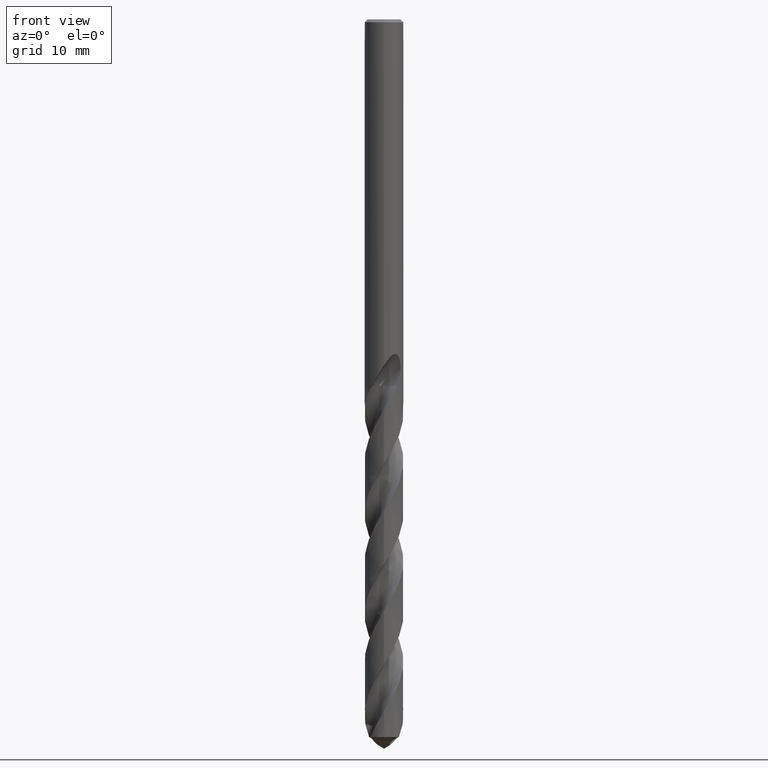
[diagram: clean part render]
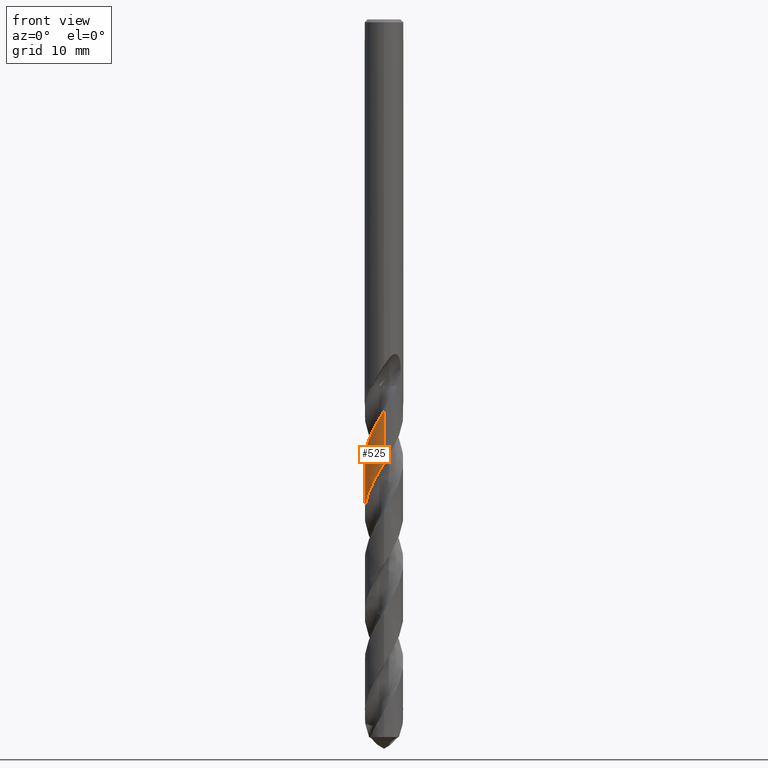
[diagram: same view with one face highlighted and labeled with its STEP entity id]
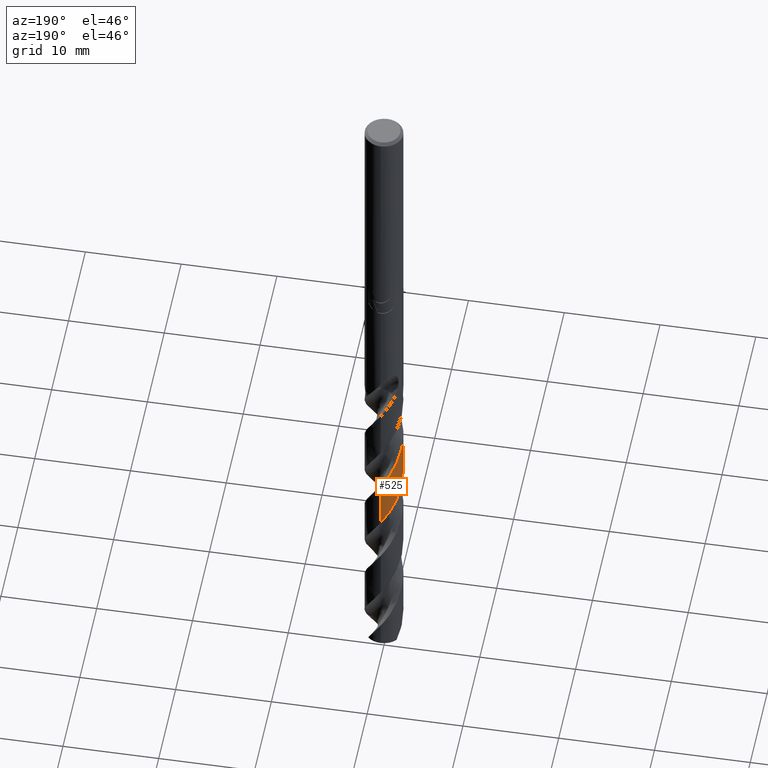
[diagram: same view with one face highlighted and labeled with its STEP entity id]
A machine part, front view. The second image highlights one B-rep face of the part: STEP entity #525.
A second angle (auxiliary view) of the same face is appended — the face is thin or edge-on in the first view.
In plain terms, the highlighted conical surface has half-angle 0 deg.
Its self-contained STEP definition (entity closure, byte-faithful):
#353=VERTEX_POINT('',#861);
#411=EDGE_CURVE('',#523,#513,#926,.T.);
#437=VERTEX_POINT('',#954);
#507=EDGE_CURVE('',#437,#523,#1030,.T.);
#513=VERTEX_POINT('',#1036);
#523=VERTEX_POINT('',#1046);
#525=ADVANCED_FACE('',(#1048),#1049,.T.);
#579=EDGE_CURVE('',#353,#437,#1111,.T.);
#645=EDGE_CURVE('',#513,#353,#1182,.T.);
#861=CARTESIAN_POINT('',(-2.19366825789092E-009,1.99993564318214,-50.5665752471484));
#926=LINE('',#3664,#3665);
#954=CARTESIAN_POINT('',(-1.89821851818501E-015,1.9999507209495,-56.0093897424403));
#1030=B_SPLINE_CURVE_WITH_KNOTS('',3,(#5679,#5680,#5681,#5682,#5683,#5684,#5685,#5686,#5687,#5688,#5689,#5690,#5691,#5692,#5693,#5694,#5695,#5696,#5697,#5698,#5699,#5700,#5701,#5702,#5703,#5704,#5705,#5706,#5707,#5708,#5709,#5710,#5711,#5712,#5713,#5714,#5715,#5716,#5717,#5718,#5719,#5720,#5721,#5722,#5723,#5724,#5725,#5726,#5727,#5728,#5729,#5730,#5731,#5732,#5733,#5734,#5735,#5736,#5737,#5738,#5739,#5740,#5741,#5742,#5743,#5744,#5745,#5746,#5747,#5748,#5749,#5750,#5751,#5752,#5753,#5754,#5755,#5756,#5757,#5758,#5759,#5760,#5761,#5762,#5763,#5764,#5765,#5766,#5767,#5768,#5769,#5770,#5771,#5772,#5773,#5774,#5775,#5776,#5777,#5778,#5779,#5780,#5781,#5782,#5783,#5784,#5785,#5786,#5787,#5788,#5789,#5790,#5791,#5792,#5793,#5794,#5795,#5796,#5797,#5798,#5799,#5800,#5801,#5802,#5803,#5804,#5805,#5806,#5807,#5808,#5809,#5810,#5811,#5812,#5813,#5814,#5815,#5816,#5817,#5818,#5819,#5820,#5821,#5822,#5823,#5824,#5825,#5826,#5827,#5828,#5829,#5830,#5831,#5832),.UNSPECIFIED.,.F.,.F.,(4,2,2,2,2,2,2,2,2,2,2,2,2,2,2,2,2,2,2,2,2,2,2,2,2,2,2,2,2,2,2,2,2,2,2,2,2,2,2,2,2,2,2,2,2,2,2,2,2,2,2,2,2,2,2,2,2,2,2,2,2,2,2,2,2,2,2,2,2,2,2,2,2,2,2,2,4),(0.0,1.24032553367658,1.48286990301691,2.52081264087684,3.03416551821197,3.70671508389971,4.37725410743775,5.04963320050356,5.72220383189465,6.4003737901738,7.10927777773157,7.8181323907391,8.52318346004922,9.23372237013536,9.86816172978323,10.5423467489422,10.8815407967902,10.9202487577009,11.6191148237687,11.9582378039923,12.5892865601359,13.2587080366521,13.5954922823803,13.6339757824647,14.3272693134265,14.6640012649049,15.2917140321308,15.956398699509,16.2907919260985,16.3741696488591,17.0057839634591,17.3403080393974,17.9800262047859,18.6405448371667,18.8057959462238,19.306067297673,19.965554956693,20.6227756760714,21.2818084755752,21.9409480895873,22.5996297300975,23.260602684544,23.8918656910809,24.5907816662158,25.2077878209879,25.9085561176649,26.6442976286168,27.3048885068284,27.9655777373696,28.6280008085611,29.2679378144779,29.9334140876591,30.514889471551,30.8504927100535,31.3663553845967,32.0286925286017,32.6890297992378,33.3509291716013,34.013185464377,34.674810658622,35.3388098755929,35.9656113593743,36.633379136894,37.7345972654092,37.7859749709192,38.4782272810486,40.0207165348157,40.6471288940166,40.9388104690562,41.1025023262755,41.195596909164,41.2333776767071,41.2695378062387,41.3189884562492,41.4343713854189,41.5982485505299,41.788288954141),.UNSPECIFIED.);
#1036=CARTESIAN_POINT('',(-3.76272970418629E-015,-1.99990702961773,-40.2375710057314));
#1046=CARTESIAN_POINT('',(2.46037451759699E-013,-1.99992210752273,-45.6804351803826));
#1048=FACE_OUTER_BOUND('',#5905,.T.);
#1049=CONICAL_SURFACE('',#5906,1.99995,2.77021518558259E-006);
#1111=LINE('',#6089,#6090);
#1182=B_SPLINE_CURVE_WITH_KNOTS('',3,(#7059,#7060,#7061,#7062,#7063,#7064,#7065,#7066,#7067,#7068,#7069,#7070,#7071,#7072,#7073,#7074,#7075,#7076,#7077,#7078,#7079,#7080,#7081,#7082,#7083,#7084,#7085,#7086,#7087,#7088,#7089,#7090,#7091,#7092,#7093,#7094,#7095,#7096,#7097,#7098,#7099,#7100,#7101,#7102,#7103,#7104,#7105,#7106,#7107,#7108,#7109,#7110,#7111,#7112,#7113,#7114,#7115,#7116,#7117,#7118,#7119,#7120,#7121,#7122,#7123,#7124,#7125,#7126,#7127,#7128,#7129,#7130,#7131,#7132,#7133,#7134,#7135,#7136,#7137,#7138,#7139,#7140,#7141,#7142,#7143,#7144,#7145,#7146,#7147,#7148,#7149,#7150,#7151,#7152,#7153,#7154,#7155,#7156,#7157,#7158,#7159,#7160,#7161,#7162,#7163,#7164,#7165,#7166,#7167,#7168,#7169,#7170,#7171,#7172,#7173,#7174,#7175,#7176,#7177,#7178,#7179,#7180,#7181,#7182,#7183,#7184,#7185,#7186,#7187,#7188,#7189,#7190,#7191,#7192,#7193,#7194,#7195,#7196,#7197,#7198,#7199,#7200,#7201,#7202,#7203,#7204,#7205,#7206,#7207,#7208,#7209,#7210,#7211,#7212,#7213,#7214,#7215,#7216,#7217,#7218,#7219,#7220,#7221,#7222,#7223,#7224,#7225,#7226,#7227,#7228,#7229,#7230,#7231,#7232,#7233,#7234,#7235,#7236,#7237,#7238,#7239,#7240),.UNSPECIFIED.,.F.,.F.,(4,2,2,2,2,2,2,2,2,2,2,2,2,2,2,2,2,2,2,2,2,2,2,2,2,2,2,2,2,2,2,2,2,2,2,2,2,2,2,2,2,2,2,2,2,2,2,2,2,2,2,2,2,2,2,2,2,2,2,2,2,2,2,2,2,2,2,2,2,2,2,2,2,2,2,2,2,2,2,2,2,2,2,2,2,2,2,2,2,2,4),(0.0,0.103242014952717,0.143162014123173,0.165246336569621,0.179587707751007,0.190170328115785,0.197981630062591,0.203754393433035,0.208026326100163,0.211176849575096,0.213497863286004,0.215211223497984,0.216477930308969,0.443871943252222,0.499196357866209,0.529789708739,0.555639728775984,0.586475384021084,0.64294904054601,0.716459816229802,1.01709561490843,1.18889624777996,1.33721914430403,1.48647925487588,2.17475794722885,2.50838508438569,2.97788342318188,3.69869431982922,4.15438525433489,4.78738339633805,5.13802788667931,5.47972340817034,6.07997742782962,6.43106360413721,6.79233197555612,7.94628727524654,8.08248365856264,9.16397508490607,9.48112720770868,10.103242533501,10.4343895620863,10.7854162159641,11.9554842663724,11.9886119956421,12.9498473469337,13.9068986778172,14.6031995455067,14.6699256937446,15.6665726820229,16.4850627584313,17.1757667926826,17.4705039393287,18.124078743558,18.4733057152474,18.7813091331889,19.4143265364156,19.7641888862437,20.0904935085466,20.7015453229712,21.0324695342341,21.3958003502327,22.5517948907513,22.6194212478342,23.601475810558,24.4670743800055,25.1215690732563,25.4212769544124,26.0656825745919,26.3958458071347,26.7212333550344,27.332742550354,27.6828289457632,28.0314073282876,29.1991322911171,29.2322034171917,30.191849307055,31.1472114073422,31.8423361268929,31.9088827792965,32.9054783203915,33.7170861157819,34.3693372364449,34.6825683904591,35.3050140239968,35.6352545509863,35.9824427866707,37.1558613127287,37.1886674167646,38.1513330405479,38.8764478364483,41.1040860441301),.UNSPECIFIED.);
#3664=CARTESIAN_POINT('',(2.46107026183834E-016,-1.99995,-55.7491393809724));
#3665=VECTOR('',#8141,1.0);
#5679=CARTESIAN_POINT('',(-1.53262371792478,1.28493756239532,-73.7982787619449));
#5680=CARTESIAN_POINT('',(-1.66988290302866,1.12121860058729,-73.4443152377205));
#5681=CARTESIAN_POINT('',(-1.78017755426643,0.93641936771401,-73.097612808172));
#5682=CARTESIAN_POINT('',(-1.87461281616959,0.698262375103469,-72.6755401035258));
#5683=CARTESIAN_POINT('',(-1.88882639474166,0.65885031969179,-72.6063935208323));
#5684=CARTESIAN_POINT('',(-1.95740806067853,0.448113983238073,-72.2415819853789));
#5685=CARTESIAN_POINT('',(-1.98971257301379,0.270662283067244,-71.9496929396074));
#5686=CARTESIAN_POINT('',(-2.00196227890094,0.00260361956815423,-71.5078805746169));
#5687=CARTESIAN_POINT('',(-2.00010904008816,-0.0863674349544658,-71.3610064273596));
#5688=CARTESIAN_POINT('',(-1.98211279688531,-0.291197956778016,-71.0230432618815));
#5689=CARTESIAN_POINT('',(-1.96176580929346,-0.406268890364327,-70.8324900580101));
#5690=CARTESIAN_POINT('',(-1.90130867156413,-0.631283876464247,-70.4498761632733));
#5691=CARTESIAN_POINT('',(-1.86143019532706,-0.740635693302151,-70.2580113307236));
#5692=CARTESIAN_POINT('',(-1.7629952437098,-0.951515288066501,-69.8754425077852));
#5693=CARTESIAN_POINT('',(-1.70456362423614,-1.05262268110823,-69.6849954016198));
#5694=CARTESIAN_POINT('',(-1.5706659038222,-1.24360917522762,-69.3020253800664));
#5695=CARTESIAN_POINT('',(-1.495577895581,-1.33295193219058,-69.1096743092869));
#5696=CARTESIAN_POINT('',(-1.33005093671287,-1.4982326792611,-68.7250520864913));
#5697=CARTESIAN_POINT('',(-1.23976210564702,-1.57377004067631,-68.5330770279535));
#5698=CARTESIAN_POINT('',(-1.04247427735746,-1.71122362109708,-68.1383350025074));
#5699=CARTESIAN_POINT('',(-0.935519627198441,-1.77194828469599,-67.9356965596016));
#5700=CARTESIAN_POINT('',(-0.71185041912336,-1.8730349991737,-67.532200545499));
#5701=CARTESIAN_POINT('',(-0.595588891374168,-1.91318488127829,-67.3317406914691));
#5702=CARTESIAN_POINT('',(-0.35774108972852,-1.97151161249924,-66.9294929341362));
#5703=CARTESIAN_POINT('',(-0.236843181585558,-1.98965606770417,-66.7280196875413));
#5704=CARTESIAN_POINT('',(0.00786822188284364,-2.00374462205703,-66.3252886702171));
#5705=CARTESIAN_POINT('',(0.131060641867172,-1.99946623553828,-66.1244186765992));
#5706=CARTESIAN_POINT('',(0.362001567646378,-1.97000659677621,-65.7417997353669));
#5707=CARTESIAN_POINT('',(0.469512641953792,-1.94718484423125,-65.5605355586954));
#5708=CARTESIAN_POINT('',(0.686494457352241,-1.8820868296905,-65.1882499614103));
#5709=CARTESIAN_POINT('',(0.795141264869552,-1.83882637421726,-64.9975542606636));
#5710=CARTESIAN_POINT('',(0.951877256578371,-1.75990880160137,-64.7093469690057));
#5711=CARTESIAN_POINT('',(1.00304114229599,-1.73125048289718,-64.6129552795981));
#5712=CARTESIAN_POINT('',(1.05845047599225,-1.69694554261188,-64.5053129438504));
#5713=CARTESIAN_POINT('',(1.06413033656497,-1.69338973608724,-64.4942479999532));
#5714=CARTESIAN_POINT('',(1.17244962393077,-1.62481156151548,-64.2826265525552));
#5715=CARTESIAN_POINT('',(1.26916965935683,-1.55048131867249,-64.0833760160938));
#5716=CARTESIAN_POINT('',(1.40216744952306,-1.42734787334935,-63.786156249145));
#5717=CARTESIAN_POINT('',(1.44377692091272,-1.38524058277191,-63.6891704622704));
#5718=CARTESIAN_POINT('',(1.55721567694982,-1.25978858150878,-63.4112074222793));
#5719=CARTESIAN_POINT('',(1.62408438506294,-1.17232125638436,-63.2296257509412));
#5720=CARTESIAN_POINT('',(1.7464865242893,-0.981470704049229,-62.857021079714));
#5721=CARTESIAN_POINT('',(1.80077973333512,-0.877894461545428,-62.6663223537711));
#5722=CARTESIAN_POINT('',(1.86835349781847,-0.715945830491936,-62.3781133208048));
#5723=CARTESIAN_POINT('',(1.8885250824403,-0.660883251029444,-62.2817234915331));
#5724=CARTESIAN_POINT('',(1.90824499270511,-0.598762819785289,-62.1740686099017));
#5725=CARTESIAN_POINT('',(1.91024307516528,-0.59235786993977,-62.162989667397));
#5726=CARTESIAN_POINT('',(1.94777011917785,-0.469881453690312,-61.9515387529477));
#5727=CARTESIAN_POINT('',(1.97276609700006,-0.350605290125268,-61.7524698993851));
#5728=CARTESIAN_POINT('',(1.99354989560672,-0.170670516689586,-61.4554339958378));
#5729=CARTESIAN_POINT('',(1.9977232763801,-0.111620473466883,-61.358447649903));
#5730=CARTESIAN_POINT('',(2.00216918789273,0.0576507512365968,-61.0801620512957));
#5731=CARTESIAN_POINT('',(1.99596019218351,0.167771404175438,-60.8982559807201));
#5732=CARTESIAN_POINT('',(1.96453863370029,0.392506346567296,-60.5253334291527));
#5733=CARTESIAN_POINT('',(1.93829175736386,0.506463128098232,-60.3346387536772));
#5734=CARTESIAN_POINT('',(1.8841117541943,0.67336465250481,-60.0464388242068));
#5735=CARTESIAN_POINT('',(1.86356817369174,0.728274550538368,-59.950072374824));
#5736=CARTESIAN_POINT('',(1.83498024645944,0.795553616264746,-59.8293268092294));
#5737=CARTESIAN_POINT('',(1.82910644742081,0.808968861376556,-59.8051560092734));
#5738=CARTESIAN_POINT('',(1.77727462886873,0.923870560796245,-59.5972427009877));
#5739=CARTESIAN_POINT('',(1.72300448044276,1.02156583827215,-59.4145626938415));
#5740=CARTESIAN_POINT('',(1.62770784002661,1.1635769232599,-59.1341079700727));
#5741=CARTESIAN_POINT('',(1.59256817713431,1.21122219268571,-59.0371218621479));
#5742=CARTESIAN_POINT('',(1.48431923733584,1.34514501172507,-58.754161390188));
#5743=CARTESIAN_POINT('',(1.4059876814206,1.42681954599787,-58.5675544239667));
#5744=CARTESIAN_POINT('',(1.23345235198588,1.57862324761034,-58.1899070021456));
#5745=CARTESIAN_POINT('',(1.13921636845709,1.64792187033076,-57.9991628217736));
#5746=CARTESIAN_POINT('',(1.01449710296805,1.72379563101954,-57.7593849746665));
#5747=CARTESIAN_POINT('',(0.989230053513144,1.73841773615108,-57.7114045067994));
#5748=CARTESIAN_POINT('',(0.88630832255769,1.79501324059676,-57.5180358516734));
#5749=CARTESIAN_POINT('',(0.806127497680109,1.83243227626335,-57.3720313022307));
#5750=CARTESIAN_POINT('',(0.614869591186591,1.90666186533303,-57.0348492732101));
#5751=CARTESIAN_POINT('',(0.502612112142768,1.9392819637579,-56.8442146983));
#5752=CARTESIAN_POINT('',(0.274022156347327,1.98450185285999,-56.4615307721579));
#5753=CARTESIAN_POINT('',(0.158318041513931,1.99705833170559,-56.2696712714644));
#5754=CARTESIAN_POINT('',(-0.0743366483283197,2.00196177721853,-55.8871171748329));
#5755=CARTESIAN_POINT('',(-0.190850947072009,1.99423442925676,-55.6966794559267));
#5756=CARTESIAN_POINT('',(-0.421322789987743,1.95854086344719,-55.3137458350253));
#5757=CARTESIAN_POINT('',(-0.534631740415872,1.93067938963049,-55.1214227075347));
#5758=CARTESIAN_POINT('',(-0.755018464011864,1.85560718970463,-54.7385879621882));
#5759=CARTESIAN_POINT('',(-0.861738141156644,1.80852556344546,-54.5483401426844));
#5760=CARTESIAN_POINT('',(-1.0662389414274,1.69604899421464,-54.1651977432134));
#5761=CARTESIAN_POINT('',(-1.16338955698532,1.63092602337572,-53.9724690426943));
#5762=CARTESIAN_POINT('',(-1.34106970864471,1.48785967673115,-53.5972854908633));
#5763=CARTESIAN_POINT('',(-1.42193288375152,1.41079282422494,-53.414983140333));
#5764=CARTESIAN_POINT('',(-1.5780070115914,1.23488132129178,-53.0290686932739));
#5765=CARTESIAN_POINT('',(-1.65116003264857,1.13518135682253,-52.825464120983));
#5766=CARTESIAN_POINT('',(-1.77064317117963,0.936178956669493,-52.4436626505247));
#5767=CARTESIAN_POINT('',(-1.81900010199805,0.838382457932723,-52.265558219128));
#5768=CARTESIAN_POINT('',(-1.90480664316705,0.621932407639089,-51.8835275227407));
#5769=CARTESIAN_POINT('',(-1.93958611023215,0.50299813893994,-51.6795842008056));
#5770=CARTESIAN_POINT('',(-1.98790527980888,0.254537183472631,-51.2631194883426));
#5771=CARTESIAN_POINT('',(-2.00023614044885,0.125110120125665,-51.0513377655327));
#5772=CARTESIAN_POINT('',(-1.99965681288727,-0.121239638589642,-50.6468240063958));
#5773=CARTESIAN_POINT('',(-1.98920521820812,-0.237382966937104,-50.4546095261018));
#5774=CARTESIAN_POINT('',(-1.94823537682987,-0.466547727887327,-50.0718350250351));
#5775=CARTESIAN_POINT('',(-1.91777593191076,-0.579178353501137,-49.8815366509014));
#5776=CARTESIAN_POINT('',(-1.83743365297725,-0.798258586093952,-49.4984439211633));
#5777=CARTESIAN_POINT('',(-1.78773942221572,-0.904055792872252,-49.3058158007163));
#5778=CARTESIAN_POINT('',(-1.67253254227673,-1.10229404571645,-48.9287295018681));
#5779=CARTESIAN_POINT('',(-1.60775976041749,-1.19480510036355,-48.7444489625398));
#5780=CARTESIAN_POINT('',(-1.46029913988396,-1.37149886332,-48.366745234998));
#5781=CARTESIAN_POINT('',(-1.37745581153361,-1.45465615726233,-48.1734207001611));
#5782=CARTESIAN_POINT('',(-1.20971117504869,-1.59585878280226,-47.8126444089888));
#5783=CARTESIAN_POINT('',(-1.12647630649067,-1.65567539813227,-47.6451748254322));
#5784=CARTESIAN_POINT('',(-0.988384363968059,-1.73962673712692,-47.3800946684194));
#5785=CARTESIAN_POINT('',(-0.936574960731401,-1.76805363786914,-47.2831942359247));
#5786=CARTESIAN_POINT('',(-0.802305596613202,-1.83418424183212,-47.036851193348));
#5787=CARTESIAN_POINT('',(-0.718279184548838,-1.86869746755517,-46.8869491200006));
#5788=CARTESIAN_POINT('',(-0.52142273202017,-1.9342756100976,-46.5459178778786));
#5789=CARTESIAN_POINT('',(-0.407726963275053,-1.96139566407105,-46.355304920412));
#5790=CARTESIAN_POINT('',(-0.177186304618905,-1.99545305276533,-45.9725898816065));
#5791=CARTESIAN_POINT('',(-0.0609733414137376,-2.0023685596074,-45.7806753950565));
#5792=CARTESIAN_POINT('',(0.171661160097134,-1.99594333309148,-45.3980845353686));
#5793=CARTESIAN_POINT('',(0.287649117635595,-1.98255753983809,-45.2076659502053));
#5794=CARTESIAN_POINT('',(0.516134417628137,-1.93568904968514,-44.8247032028507));
#5795=CARTESIAN_POINT('',(0.627983982716596,-1.90233543953389,-44.6323326758171));
#5796=CARTESIAN_POINT('',(0.844475022128079,-1.81661109103565,-44.2494452229939));
#5797=CARTESIAN_POINT('',(0.948772522238124,-1.76438973439971,-44.0591942825847));
#5798=CARTESIAN_POINT('',(1.14755934457002,-1.64208443637845,-43.6760280705636));
#5799=CARTESIAN_POINT('',(1.24143080721525,-1.57230097466319,-43.4832720041797));
#5800=CARTESIAN_POINT('',(1.41097805867138,-1.42159582322371,-43.1101730273673));
#5801=CARTESIAN_POINT('',(1.48718168540786,-1.34168592350624,-42.9299507471879));
#5802=CARTESIAN_POINT('',(1.63026841121357,-1.16434289602977,-42.5560521849537));
#5803=CARTESIAN_POINT('',(1.69575743043484,-1.06667060780719,-42.362462441773));
#5804=CARTESIAN_POINT('',(1.8453700664036,-0.794725484491324,-41.8515701531617));
#5805=CARTESIAN_POINT('',(1.91337952920689,-0.613003185064811,-41.5381764187789));
#5806=CARTESIAN_POINT('',(1.95621511932899,-0.41586310725348,-41.2051681533261));
#5807=CARTESIAN_POINT('',(1.9580629959505,-0.407073801080759,-41.1903331936901));
#5808=CARTESIAN_POINT('',(1.98401701981457,-0.279346328385922,-40.9752211276293));
#5809=CARTESIAN_POINT('',(1.99736138168565,-0.158239261368164,-40.7763300693778));
#5810=CARTESIAN_POINT('',(2.00451487709897,0.235194943909462,-40.1312067315355));
#5811=CARTESIAN_POINT('',(1.95410061767399,0.50540297378357,-39.6848285766994));
#5812=CARTESIAN_POINT('',(1.8088697509928,0.860152389223623,-39.0591920328594));
#5813=CARTESIAN_POINT('',(1.75946381310348,0.956638556166705,-38.8853843587732));
#5814=CARTESIAN_POINT('',(1.67805049006828,1.08912697475643,-38.6253118050715));
#5815=CARTESIAN_POINT('',(1.65112221139424,1.12945484109858,-38.5425157905671));
#5816=CARTESIAN_POINT('',(1.60774036509074,1.18974437591616,-38.4118055225168));
#5817=CARTESIAN_POINT('',(1.59192903081597,1.2108033204371,-38.3646894112861));
#5818=CARTESIAN_POINT('',(1.56682986314169,1.24292765889574,-38.2903471927372));
#5819=CARTESIAN_POINT('',(1.55962632914924,1.25198562289494,-38.2687816208233));
#5820=CARTESIAN_POINT('',(1.54432423834948,1.27071524606637,-38.2264184795733));
#5821=CARTESIAN_POINT('',(1.53982358369299,1.27616624375821,-38.2142421541025));
#5822=CARTESIAN_POINT('',(1.53084522684893,1.28692085116517,-38.190508945088));
#5823=CARTESIAN_POINT('',(1.52637641357318,1.29221884206538,-38.1789521088422));
#5824=CARTESIAN_POINT('',(1.51560459246632,1.30485236716283,-38.1517021446857));
#5825=CARTESIAN_POINT('',(1.50923441842683,1.31221724621614,-38.1360582684901));
#5826=CARTESIAN_POINT('',(1.48748382478172,1.33698486501797,-38.0842126297658));
#5827=CARTESIAN_POINT('',(1.47144810602311,1.35464104761593,-38.0484910725662));
#5828=CARTESIAN_POINT('',(1.43048833704534,1.39804598143647,-37.9632230702732));
#5829=CARTESIAN_POINT('',(1.40477950862335,1.42395258190716,-37.9144229715555));
#5830=CARTESIAN_POINT('',(1.34527219624892,1.48046813185615,-37.8111773236327));
#5831=CARTESIAN_POINT('',(1.31105923424166,1.51095560156955,-37.7574599059652));
#5832=CARTESIAN_POINT('',(1.27440158741468,1.54126592754024,-37.705));
#5905=EDGE_LOOP('',(#8249,#8250,#8251,#8252));
#5906=AXIS2_PLACEMENT_3D('',#8253,#8254,#8255);
#6089=CARTESIAN_POINT('',(-2.43723269281579E-016,1.99995,-55.7491393809724));
#6090=VECTOR('',#8342,1.0);
#7059=CARTESIAN_POINT('',(1.39008397358236,-1.43779922513228,-37.705));
#7060=CARTESIAN_POINT('',(1.37786387304143,-1.44961390092323,-37.7349233406855));
#7061=CARTESIAN_POINT('',(1.36544726101343,-1.46131775670189,-37.7648875674558));
#7062=CARTESIAN_POINT('',(1.34790380970774,-1.47743041319746,-37.8063976775579));
#7063=CARTESIAN_POINT('',(1.34298074550868,-1.48190707638936,-37.8179595512112));
#7064=CARTESIAN_POINT('',(1.33527584453718,-1.48884303031934,-37.835910530226));
#7065=CARTESIAN_POINT('',(1.33252121537796,-1.49130899298506,-37.8423001431057));
#7066=CARTESIAN_POINT('',(1.3279587484769,-1.49537053925125,-37.8528354264572));
#7067=CARTESIAN_POINT('',(1.32615789314022,-1.49696786844326,-37.8569816550718));
#7068=CARTESIAN_POINT('',(1.32301970865334,-1.4997412583039,-37.8641854426557));
#7069=CARTESIAN_POINT('',(1.32168472205139,-1.50091789596464,-37.8672432344455));
#7070=CARTESIAN_POINT('',(1.31935972432941,-1.50296159894508,-37.872556879257));
#7071=CARTESIAN_POINT('',(1.31837097537306,-1.5038289963821,-37.874812924169));
#7072=CARTESIAN_POINT('',(1.31664899002395,-1.50533663129249,-37.8787355613984));
#7073=CARTESIAN_POINT('',(1.31591643344166,-1.50597705717489,-37.8804022847349));
#7074=CARTESIAN_POINT('',(1.31464039347926,-1.50709097131424,-37.8833020169032));
#7075=CARTESIAN_POINT('',(1.31409727761907,-1.5075645655386,-37.8845351079524));
#7076=CARTESIAN_POINT('',(1.31315286216759,-1.50838719221455,-37.8866773748265));
#7077=CARTESIAN_POINT('',(1.31275176425542,-1.50873628472428,-37.8875866008112));
#7078=CARTESIAN_POINT('',(1.3120547640544,-1.50934242492065,-37.8891655372906));
#7079=CARTESIAN_POINT('',(1.3117589713566,-1.50959950587481,-37.889835276749));
#7080=CARTESIAN_POINT('',(1.31124460304084,-1.51004629102899,-37.8909993464913));
#7081=CARTESIAN_POINT('',(1.31102608631687,-1.51023601353297,-37.8914936933869));
#7082=CARTESIAN_POINT('',(1.31064589608968,-1.5105659608849,-37.8923534791378));
#7083=CARTESIAN_POINT('',(1.31048425444945,-1.51070619579981,-37.8927189273831));
#7084=CARTESIAN_POINT('',(1.28129847119991,-1.53601860058955,-37.9586860026859));
#7085=CARTESIAN_POINT('',(1.25167303414436,-1.56028381319221,-38.0224431825554));
#7086=CARTESIAN_POINT('',(1.21267629813578,-1.59031866221227,-38.1027354495152));
#7087=CARTESIAN_POINT('',(1.20498416928656,-1.59615528856036,-38.1184117578468));
#7088=CARTESIAN_POINT('',(1.19292946554293,-1.60516445319522,-38.142752674755));
#7089=CARTESIAN_POINT('',(1.1886188990613,-1.60835910120316,-38.151412495637));
#7090=CARTESIAN_POINT('',(1.1806303194515,-1.61422980149747,-38.1673858125768));
#7091=CARTESIAN_POINT('',(1.17695932650249,-1.61690837942242,-38.1746969346226));
#7092=CARTESIAN_POINT('',(1.16888092800683,-1.62276069387482,-38.1907265650866));
#7093=CARTESIAN_POINT('',(1.16447000259866,-1.62592887515482,-38.1994406655654));
#7094=CARTESIAN_POINT('',(1.15193225465519,-1.63485687875439,-38.2241122048803));
#7095=CARTESIAN_POINT('',(1.14377388160877,-1.64057511716888,-38.240050680143));
#7096=CARTESIAN_POINT('',(1.124883089014,-1.65360602334604,-38.2767503741521));
#7097=CARTESIAN_POINT('',(1.1140101645739,-1.66095291816124,-38.2977162292994));
#7098=CARTESIAN_POINT('',(1.05758689680201,-1.69825548402141,-38.4063795585645));
#7099=CARTESIAN_POINT('',(1.01135940529068,-1.72615981094616,-38.494461257439));
#7100=CARTESIAN_POINT('',(0.937651301953933,-1.76673612874487,-38.6325833052391));
#7101=CARTESIAN_POINT('',(0.910548755889102,-1.78085451334152,-38.6829007721702));
#7102=CARTESIAN_POINT('',(0.859540047941869,-1.80596144120811,-38.7766066497506));
#7103=CARTESIAN_POINT('',(0.835676122450983,-1.81712738461465,-38.8200526400443));
#7104=CARTESIAN_POINT('',(0.787366671292288,-1.83857825588234,-38.9071631414763));
#7105=CARTESIAN_POINT('',(0.762913051352005,-1.84885956150845,-38.9508576801187));
#7106=CARTESIAN_POINT('',(0.624531804478263,-1.90382487312776,-39.1960965378374));
#7107=CARTESIAN_POINT('',(0.506800011457292,-1.93850608101639,-39.3969235943402));
#7108=CARTESIAN_POINT('',(0.328189434750769,-1.97368843468534,-39.6958828205283));
#7109=CARTESIAN_POINT('',(0.269404760654191,-1.98256751545482,-39.7934153264086));
#7110=CARTESIAN_POINT('',(0.127180392545985,-1.99760882048565,-40.0284005937068));
#7111=CARTESIAN_POINT('',(0.0436280534757016,-2.00117317540215,-40.1657284148118));
#7112=CARTESIAN_POINT('',(-0.167993922131697,-1.99695729887707,-40.5141558167758));
#7113=CARTESIAN_POINT('',(-0.295696276776411,-1.98208824320795,-40.7247245150474));
#7114=CARTESIAN_POINT('',(-0.500507642548412,-1.93796660852985,-41.0689370294438));
#7115=CARTESIAN_POINT('',(-0.578701569921236,-1.91606979464316,-41.2019739583632));
#7116=CARTESIAN_POINT('',(-0.761800585155813,-1.85256556680259,-41.5205624544108));
#7117=CARTESIAN_POINT('',(-0.864958763858327,-1.80670701581165,-41.7056687792942));
#7118=CARTESIAN_POINT('',(-1.01840383518741,-1.72232345515074,-41.9935293823529));
#7119=CARTESIAN_POINT('',(-1.07167504306704,-1.68969262448148,-42.0960636422373));
#7120=CARTESIAN_POINT('',(-1.17368991387904,-1.62043397719474,-42.2986452830333));
#7121=CARTESIAN_POINT('',(-1.22243134882225,-1.5839861674161,-42.3985223682522));
#7122=CARTESIAN_POINT('',(-1.35197875803215,-1.47757302746799,-42.6742377520251));
#7123=CARTESIAN_POINT('',(-1.42898026494289,-1.40324352193779,-42.8498288182095));
#7124=CARTESIAN_POINT('',(-1.54103201048698,-1.27623951058631,-43.1282844291864));
#7125=CARTESIAN_POINT('',(-1.58017518124301,-1.22744400754446,-43.2309638840003));
#7126=CARTESIAN_POINT('',(-1.65484673976761,-1.12484982187756,-43.4394247630929));
#7127=CARTESIAN_POINT('',(-1.69016926839794,-1.07104118368905,-43.5450063516116));
#7128=CARTESIAN_POINT('',(-1.82716214871244,-0.838661392802355,-43.988554792302));
#7129=CARTESIAN_POINT('',(-1.90364728869491,-0.646577920719705,-44.3246496815499));
#7130=CARTESIAN_POINT('',(-1.95492599050632,-0.422528921981249,-44.7022578638532));
#7131=CARTESIAN_POINT('',(-1.95990682346583,-0.398787551681917,-44.7421118137018));
#7132=CARTESIAN_POINT('',(-2.00056344009476,-0.18579100925809,-45.0986064558074));
#7133=CARTESIAN_POINT('',(-2.00917060093627,0.00770024177994527,-45.414056747109));
#7134=CARTESIAN_POINT('',(-1.98431497305919,0.25569142938738,-45.823498563394));
#7135=CARTESIAN_POINT('',(-1.97630034000346,0.311637097627918,-45.9162602566387));
#7136=CARTESIAN_POINT('',(-1.94559463670072,0.476055283765676,-46.1913250434059));
#7137=CARTESIAN_POINT('',(-1.91623901174088,0.583099679330402,-46.3733747087533));
#7138=CARTESIAN_POINT('',(-1.85789361749266,0.742569975498839,-46.6525246326869));
#7139=CARTESIAN_POINT('',(-1.83517978593947,0.797056045261772,-46.7494256940456));
#7140=CARTESIAN_POINT('',(-1.78348032272468,0.907090990754286,-46.9491552098852));
#7141=CARTESIAN_POINT('',(-1.75424573013992,0.962410791715765,-47.0518064894414));
#7142=CARTESIAN_POINT('',(-1.6165770545773,1.19575030248112,-47.4973066277941));
#7143=CARTESIAN_POINT('',(-1.48321586502623,1.35767303787772,-47.8381517440104));
#7144=CARTESIAN_POINT('',(-1.32279105466159,1.49999164618099,-48.1904832533959));
#7145=CARTESIAN_POINT('',(-1.31835666138672,1.50389059906422,-48.2001841812809));
#7146=CARTESIAN_POINT('',(-1.18473909807011,1.62032907219414,-48.4914097837295));
#7147=CARTESIAN_POINT('',(-1.04160608451341,1.71585111603375,-48.7724598708261));
#7148=CARTESIAN_POINT('',(-0.735189798456847,1.86770859301357,-49.3343897830595));
#7149=CARTESIAN_POINT('',(-0.573290298276154,1.92357578645447,-49.6136975969326));
#7150=CARTESIAN_POINT('',(-0.284870783913293,1.98342517310971,-50.0981440698975));
#7151=CARTESIAN_POINT('',(-0.161280484948193,1.99728314695719,-50.3015591576284));
#7152=CARTESIAN_POINT('',(-0.0252633648918547,1.99981134349552,-50.5250609896347));
#7153=CARTESIAN_POINT('',(-0.0133692633380906,1.99992627011224,-50.5446030573995));
#7154=CARTESIAN_POINT('',(0.176192989974687,2.00006687577187,-50.8561456557864));
#7155=CARTESIAN_POINT('',(0.353150303939391,1.97651829778656,-51.1474818604949));
#7156=CARTESIAN_POINT('',(0.665516905074134,1.89159938414709,-51.6793257220622));
#7157=CARTESIAN_POINT('',(0.801701845443321,1.83801603994168,-51.918504611597));
#7158=CARTESIAN_POINT('',(1.03972515516455,1.71285781212852,-52.3608475389737));
#7159=CARTESIAN_POINT('',(1.14318749386553,1.64561904780784,-52.5627481864189));
#7160=CARTESIAN_POINT('',(1.28109238878819,1.53666307301564,-52.8514734035916));
#7161=CARTESIAN_POINT('',(1.32101940761068,1.50247649192005,-52.9377780524801));
#7162=CARTESIAN_POINT('',(1.44496784091985,1.38759024205621,-53.2157277616039));
#7163=CARTESIAN_POINT('',(1.52333605954696,1.30107702990046,-53.407095139131));
#7164=CARTESIAN_POINT('',(1.63135501760469,1.15859199528363,-53.7009829969624));
#7165=CARTESIAN_POINT('',(1.66664190360085,1.10723235499331,-53.8032435116127));
#7166=CARTESIAN_POINT('',(1.72844219120659,1.00761423242102,-53.9958268055068));
#7167=CARTESIAN_POINT('',(1.75545585041542,0.959776193410875,-54.0860088112585));
#7168=CARTESIAN_POINT('',(1.83185227995926,0.810452297163189,-54.361852020099));
#7169=CARTESIAN_POINT('',(1.87466218376939,0.705811133104764,-54.5472525677102));
#7170=CARTESIAN_POINT('',(1.92707632531258,0.538570933169307,-54.8353454111));
#7171=CARTESIAN_POINT('',(1.94294188778488,0.478187439666064,-54.9378089674208));
#7172=CARTESIAN_POINT('',(1.96810198353484,0.360216961182431,-55.1359667630788));
#7173=CARTESIAN_POINT('',(1.97774769844606,0.302807462023211,-55.2314994347554));
#7174=CARTESIAN_POINT('',(1.99822596278424,0.13695789825351,-55.5063010320279));
#7175=CARTESIAN_POINT('',(2.00272156310811,0.0279139642638779,-55.6853208982669));
#7176=CARTESIAN_POINT('',(1.99592219721987,-0.139926275083413,-55.9614698251466));
#7177=CARTESIAN_POINT('',(1.99092439582836,-0.198769485915891,-56.0584133398099));
#7178=CARTESIAN_POINT('',(1.97498829909687,-0.321603603259817,-56.2619025553287));
#7179=CARTESIAN_POINT('',(1.96353130763574,-0.385420325608257,-56.3682576096901));
#7180=CARTESIAN_POINT('',(1.90277179395152,-0.649429709779469,-56.8137197615019));
#7181=CARTESIAN_POINT('',(1.82573701390078,-0.842049975788506,-57.1509147917714));
#7182=CARTESIAN_POINT('',(1.71443585271483,-1.02989068852762,-57.5096182794097));
#7183=CARTESIAN_POINT('',(1.70819164381053,-1.04021469894303,-57.5294394686918));
#7184=CARTESIAN_POINT('',(1.60982197466378,-1.19958204169109,-57.8372113405159));
#7185=CARTESIAN_POINT('',(1.49856027063895,-1.33598817922419,-58.12457136869));
#7186=CARTESIAN_POINT('',(1.25846591134098,-1.5620380348921,-58.6663851269394));
#7187=CARTESIAN_POINT('',(1.13413141597212,-1.6545125813957,-58.9194445777278));
#7188=CARTESIAN_POINT('',(0.899393794505984,-1.79012717404742,-59.3653367341659));
#7189=CARTESIAN_POINT('',(0.793364190885328,-1.83958245718866,-59.5568503564054));
#7190=CARTESIAN_POINT('',(0.63329982917504,-1.89779834173459,-59.8366491993393));
#7191=CARTESIAN_POINT('',(0.582333704601515,-1.91405105436628,-59.9244734995152));
#7192=CARTESIAN_POINT('',(0.419975558997815,-1.95874475932774,-60.20141726562));
#7193=CARTESIAN_POINT('',(0.306705523208066,-1.97964799193534,-60.3902669187247));
#7194=CARTESIAN_POINT('',(0.133603324902864,-1.99636566458,-60.6761172852985));
#7195=CARTESIAN_POINT('',(0.0747266907186604,-1.99943630445734,-60.7728848073658));
#7196=CARTESIAN_POINT('',(-0.0422974769004497,-2.00036069143737,-60.9651338175338));
#7197=CARTESIAN_POINT('',(-0.100351617952022,-1.99828881101842,-61.0604646536023));
#7198=CARTESIAN_POINT('',(-0.266971725405188,-1.9850666365788,-61.3353217599731));
#7199=CARTESIAN_POINT('',(-0.374854458088028,-1.9675507903492,-61.5145985018194));
#7200=CARTESIAN_POINT('',(-0.541419976571116,-1.92630068127886,-61.7966938376236));
#7201=CARTESIAN_POINT('',(-0.601339000063358,-1.90844605393064,-61.8993127181269));
#7202=CARTESIAN_POINT('',(-0.719083094085583,-1.86726086111115,-62.1042349200183));
#7203=CARTESIAN_POINT('',(-0.776814314847176,-1.84399013655817,-62.2063531142659));
#7204=CARTESIAN_POINT('',(-1.02276559475098,-1.73125413941403,-62.6512426622647));
#7205=CARTESIAN_POINT('',(-1.19753740346442,-1.61532022706708,-62.992013784461));
#7206=CARTESIAN_POINT('',(-1.35560961081418,-1.47045626078028,-63.3442707364048));
#7207=CARTESIAN_POINT('',(-1.35994544847936,-1.46644724306251,-63.3539723969591));
#7208=CARTESIAN_POINT('',(-1.48956070095525,-1.34553270458205,-63.6452362012159));
#7209=CARTESIAN_POINT('',(-1.5993478504396,-1.21299263439157,-63.9263237573089));
#7210=CARTESIAN_POINT('',(-1.7820019157137,-0.923838955215543,-64.4882968933902));
#7211=CARTESIAN_POINT('',(-1.85426470366306,-0.76855592549603,-64.7676112476514));
#7212=CARTESIAN_POINT('',(-1.94353471606055,-0.487822784532255,-65.2520820818879));
#7213=CARTESIAN_POINT('',(-1.97006178363795,-0.366305148374715,-65.4555157783983));
#7214=CARTESIAN_POINT('',(-1.9865965697446,-0.231269066185116,-65.6790189440755));
#7215=CARTESIAN_POINT('',(-1.98793574142539,-0.219460644879667,-65.6985433028194));
#7216=CARTESIAN_POINT('',(-2.00764848726086,-0.0306233719088765,-66.010573962716));
#7217=CARTESIAN_POINT('',(-2.00241740174057,0.148134016333378,-66.3024066816042));
#7218=CARTESIAN_POINT('',(-1.95011037719586,0.46692367734958,-66.8331617843809));
#7219=CARTESIAN_POINT('',(-1.91114949375281,0.606979223177001,-67.0707603685406));
#7220=CARTESIAN_POINT('',(-1.81426216214905,0.849670552936171,-67.5005803337779));
#7221=CARTESIAN_POINT('',(-1.76171248359154,0.95387789590925,-67.6916436165189));
#7222=CARTESIAN_POINT('',(-1.67089145975433,1.10054050867894,-67.9750268504352));
#7223=CARTESIAN_POINT('',(-1.63945507067155,1.14684412393278,-68.0668868051788));
#7224=CARTESIAN_POINT('',(-1.53990424182821,1.28100978288755,-68.3416241977531));
#7225=CARTESIAN_POINT('',(-1.46634119446629,1.36460438296207,-68.5242485475883));
#7226=CARTESIAN_POINT('',(-1.34368396082356,1.48254418660032,-68.8039654011186));
#7227=CARTESIAN_POINT('',(-1.29936847530635,1.52153531264735,-68.9008557956958));
#7228=CARTESIAN_POINT('',(-1.20503706319092,1.59739870515994,-69.0997194146983));
#7229=CARTESIAN_POINT('',(-1.15492738145282,1.63399393794468,-69.2015182802885));
#7230=CARTESIAN_POINT('',(-0.928419387331156,1.78378961467741,-69.6480528292873));
#7231=CARTESIAN_POINT('',(-0.73645796077772,1.87124596372177,-69.9907424037679));
#7232=CARTESIAN_POINT('',(-0.528732938923113,1.92884358735834,-70.3448963561104));
#7233=CARTESIAN_POINT('',(-0.523077268765014,1.93038503374894,-70.3545275686333));
#7234=CARTESIAN_POINT('',(-0.351245582170046,1.97640695367391,-70.6468435620815));
#7235=CARTESIAN_POINT('',(-0.179974355208724,1.99929704177393,-70.9290126470504));
#7236=CARTESIAN_POINT('',(0.121718666482639,2.00048959991004,-71.4246943007145));
#7237=CARTESIAN_POINT('',(0.251013692518579,1.98840050368348,-71.6370203623645));
#7238=CARTESIAN_POINT('',(0.768811736353113,1.88869602459421,-72.5045602334502));
#7239=CARTESIAN_POINT('',(1.12844887592887,1.69857143481526,-73.1441863420449));
#7240=CARTESIAN_POINT('',(1.41070437765753,1.41771406103554,-73.7982787619449));
#8141=DIRECTION('',(-3.39242311771534E-022,2.77021518557905E-006,0.999999999996163));
#8249=ORIENTED_EDGE('',*,*,#579,.T.);
#8250=ORIENTED_EDGE('',*,*,#507,.T.);
#8251=ORIENTED_EDGE('',*,*,#411,.T.);
#8252=ORIENTED_EDGE('',*,*,#645,.T.);
#8253=CARTESIAN_POINT('',(0.0,0.0,-55.7491393809724));
#8254=DIRECTION('',(0.0,-0.0,-1.0));
#8255=DIRECTION('',(0.0,1.0,0.0));
#8342=DIRECTION('',(-3.39242311771534E-022,2.77021518557905E-006,-0.999999999996163));